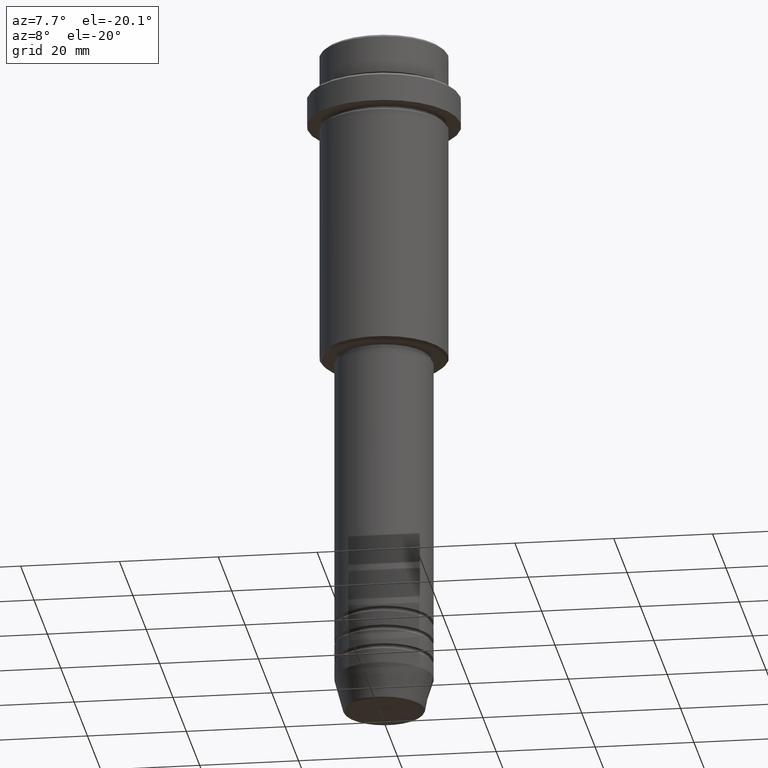
[diagram: clean part render]
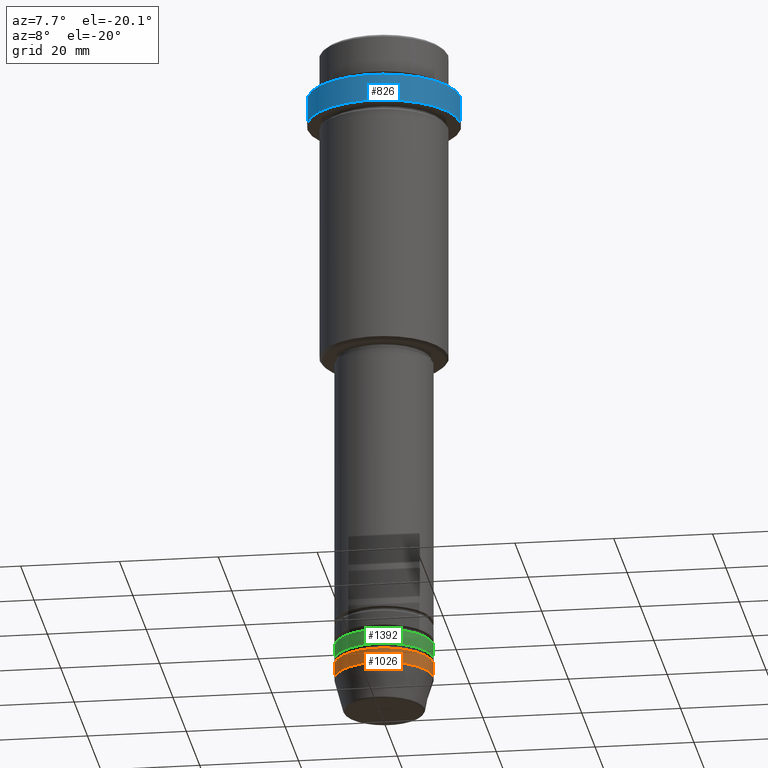
[diagram: same view with three faces highlighted in distinct colors, each labeled with its STEP entity id]
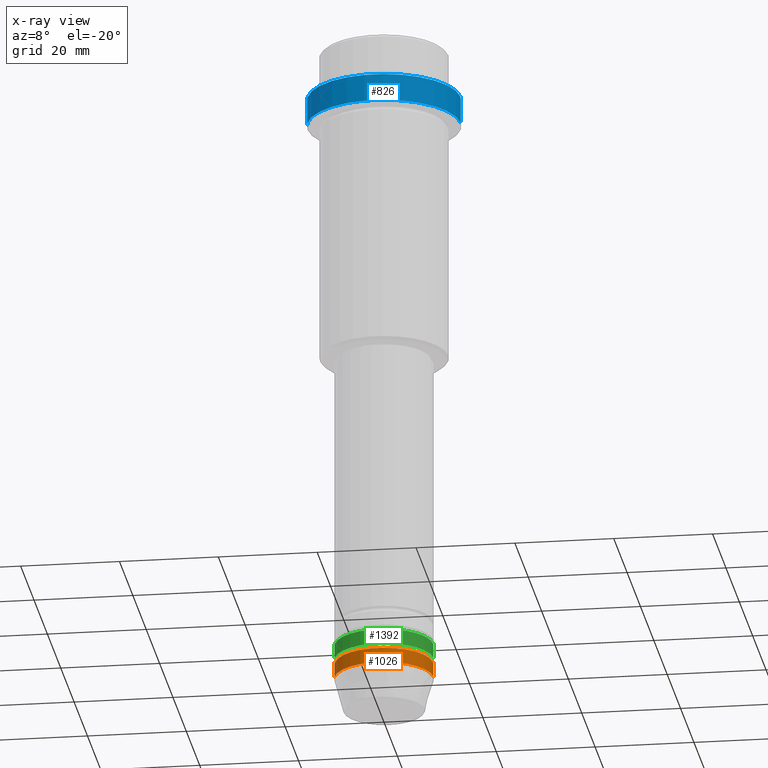
[diagram: x-ray of the same camera — body ghosted, the three highlighted faces saturated]
A machine part, auxiliary view with three faces highlighted in distinct colors.
The next image is the same camera in x-ray (body ghosted, the three faces saturated) — at least one of them is partly hidden behind the body in this view.
Their STEP definitions:

[orange] entity #1026 — the highlighted cylindrical surface (partial cylindrical patch) has radius 10 mm, axis along (-0, -0, 1).
#12 = VECTOR ( 'NONE', #1411, 1000.000000000000000 ) ;
#54 = FACE_OUTER_BOUND ( 'NONE', #298, .T. ) ;
#78 = ORIENTED_EDGE ( 'NONE', *, *, #1167, .F. ) ;
#97 = DIRECTION ( 'NONE',  ( 1.000000000000000000, 0.000000000000000000, 0.000000000000000000 ) ) ;
#104 = CARTESIAN_POINT ( 'NONE',  ( 0.000000000000000000, 0.000000000000000000, -130.0000000000000000 ) ) ;
#132 = DIRECTION ( 'NONE',  ( 1.000000000000000000, 0.000000000000000000, 0.000000000000000000 ) ) ;
#168 = CYLINDRICAL_SURFACE ( 'NONE', #1015, 10.00000000000000000 ) ;
#171 = VERTEX_POINT ( 'NONE', #762 ) ;
#293 = VECTOR ( 'NONE', #1073, 1000.000000000000000 ) ;
#298 = EDGE_LOOP ( 'NONE', ( #78, #1169, #1239, #772 ) ) ;
#324 = CARTESIAN_POINT ( 'NONE',  ( -10.00000000000000000, 1.224646799147353256E-15, 0.000000000000000000 ) ) ;
#349 = VERTEX_POINT ( 'NONE', #1068 ) ;
#427 = DIRECTION ( 'NONE',  ( -0.000000000000000000, -0.000000000000000000, 1.000000000000000000 ) ) ;
#532 = CIRCLE ( 'NONE', #1125, 10.00000000000000000 ) ;
#594 = DIRECTION ( 'NONE',  ( -0.000000000000000000, -0.000000000000000000, 1.000000000000000000 ) ) ;
#714 = EDGE_CURVE ( 'NONE', #349, #171, #532, .T. ) ;
#762 = CARTESIAN_POINT ( 'NONE',  ( 10.00000000000000000, 0.000000000000000000, -130.0000000000000000 ) ) ;
#766 = CARTESIAN_POINT ( 'NONE',  ( 10.00000000000000000, 0.000000000000000000, 0.000000000000000000 ) ) ;
#772 = ORIENTED_EDGE ( 'NONE', *, *, #714, .F. ) ;
#827 = CARTESIAN_POINT ( 'NONE',  ( 0.000000000000000000, 0.000000000000000000, 0.000000000000000000 ) ) ;
#856 = CIRCLE ( 'NONE', #1127, 10.00000000000000000 ) ;
#895 = DIRECTION ( 'NONE',  ( -0.000000000000000000, -0.000000000000000000, 1.000000000000000000 ) ) ;
#923 = EDGE_CURVE ( 'NONE', #1325, #1107, #856, .T. ) ;
#960 = CARTESIAN_POINT ( 'NONE',  ( 10.00000000000000000, 0.000000000000000000, -133.0000000000000000 ) ) ;
#968 = LINE ( 'NONE', #324, #12 ) ;
#1015 = AXIS2_PLACEMENT_3D ( 'NONE', #827, #594, #1264 ) ;
#1026 = ADVANCED_FACE ( 'NONE', ( #54 ), #168, .T. ) ;
#1067 = LINE ( 'NONE', #766, #293 ) ;
#1068 = CARTESIAN_POINT ( 'NONE',  ( -10.00000000000000000, 1.224646799147353256E-15, -130.0000000000000000 ) ) ;
#1073 = DIRECTION ( 'NONE',  ( -0.000000000000000000, -0.000000000000000000, 1.000000000000000000 ) ) ;
#1095 = EDGE_CURVE ( 'NONE', #1107, #171, #1067, .T. ) ;
#1107 = VERTEX_POINT ( 'NONE', #960 ) ;
#1125 = AXIS2_PLACEMENT_3D ( 'NONE', #104, #427, #97 ) ;
#1127 = AXIS2_PLACEMENT_3D ( 'NONE', #1345, #895, #132 ) ;
#1167 = EDGE_CURVE ( 'NONE', #1325, #349, #968, .T. ) ;
#1169 = ORIENTED_EDGE ( 'NONE', *, *, #923, .T. ) ;
#1239 = ORIENTED_EDGE ( 'NONE', *, *, #1095, .T. ) ;
#1264 = DIRECTION ( 'NONE',  ( 1.000000000000000000, 0.000000000000000000, 0.000000000000000000 ) ) ;
#1325 = VERTEX_POINT ( 'NONE', #1335 ) ;
#1335 = CARTESIAN_POINT ( 'NONE',  ( -10.00000000000000000, 1.224646799147353256E-15, -133.0000000000000000 ) ) ;
#1345 = CARTESIAN_POINT ( 'NONE',  ( 0.000000000000000000, 0.000000000000000000, -133.0000000000000000 ) ) ;
#1411 = DIRECTION ( 'NONE',  ( -0.000000000000000000, -0.000000000000000000, 1.000000000000000000 ) ) ;

[blue] entity #826 — the highlighted cylindrical surface (partial cylindrical patch) has radius 15.5 mm, axis along (-0, -0, 1).
#17 = CARTESIAN_POINT ( 'NONE',  ( 15.50000000000000000, 0.000000000000000000, -9.499999999999984013 ) ) ;
#113 = EDGE_CURVE ( 'NONE', #1119, #1287, #907, .T. ) ;
#177 = EDGE_CURVE ( 'NONE', #563, #935, #980, .T. ) ;
#197 = DIRECTION ( 'NONE',  ( 1.000000000000000000, 0.000000000000000000, 0.000000000000000000 ) ) ;
#220 = DIRECTION ( 'NONE',  ( -0.000000000000000000, -0.000000000000000000, 1.000000000000000000 ) ) ;
#291 = AXIS2_PLACEMENT_3D ( 'NONE', #802, #1209, #917 ) ;
#292 = EDGE_CURVE ( 'NONE', #1287, #935, #508, .T. ) ;
#345 = FACE_OUTER_BOUND ( 'NONE', #1225, .T. ) ;
#348 = EDGE_CURVE ( 'NONE', #563, #1119, #1382, .T. ) ;
#462 = AXIS2_PLACEMENT_3D ( 'NONE', #961, #1184, #197 ) ;
#504 = CARTESIAN_POINT ( 'NONE',  ( -15.50000000000000000, 1.898202538678397557E-15, -9.499999999999984013 ) ) ;
#508 = CIRCLE ( 'NONE', #1297, 15.50000000000000000 ) ;
#519 = CARTESIAN_POINT ( 'NONE',  ( 15.50000000000000000, 0.000000000000000000, -15.00000000000000000 ) ) ;
#525 = VECTOR ( 'NONE', #220, 1000.000000000000000 ) ;
#563 = VERTEX_POINT ( 'NONE', #618 ) ;
#618 = CARTESIAN_POINT ( 'NONE',  ( -15.50000000000000000, 1.898202538678397557E-15, -15.00000000000000000 ) ) ;
#690 = CYLINDRICAL_SURFACE ( 'NONE', #291, 15.50000000000000000 ) ;
#700 = DIRECTION ( 'NONE',  ( 1.000000000000000000, 0.000000000000000000, 0.000000000000000000 ) ) ;
#770 = ORIENTED_EDGE ( 'NONE', *, *, #292, .T. ) ;
#783 = VECTOR ( 'NONE', #1348, 1000.000000000000000 ) ;
#802 = CARTESIAN_POINT ( 'NONE',  ( 0.000000000000000000, 0.000000000000000000, 0.000000000000000000 ) ) ;
#826 = ADVANCED_FACE ( 'NONE', ( #345 ), #690, .T. ) ;
#898 = CARTESIAN_POINT ( 'NONE',  ( 15.50000000000000000, 0.000000000000000000, 0.000000000000000000 ) ) ;
#907 = LINE ( 'NONE', #898, #783 ) ;
#917 = DIRECTION ( 'NONE',  ( 1.000000000000000000, 0.000000000000000000, 0.000000000000000000 ) ) ;
#935 = VERTEX_POINT ( 'NONE', #504 ) ;
#961 = CARTESIAN_POINT ( 'NONE',  ( 0.000000000000000000, 0.000000000000000000, -15.00000000000000000 ) ) ;
#980 = LINE ( 'NONE', #1191, #525 ) ;
#993 = ORIENTED_EDGE ( 'NONE', *, *, #177, .F. ) ;
#1048 = ORIENTED_EDGE ( 'NONE', *, *, #113, .T. ) ;
#1119 = VERTEX_POINT ( 'NONE', #519 ) ;
#1184 = DIRECTION ( 'NONE',  ( -0.000000000000000000, -0.000000000000000000, 1.000000000000000000 ) ) ;
#1191 = CARTESIAN_POINT ( 'NONE',  ( -15.50000000000000000, 1.898202538678397557E-15, 0.000000000000000000 ) ) ;
#1209 = DIRECTION ( 'NONE',  ( -0.000000000000000000, -0.000000000000000000, 1.000000000000000000 ) ) ;
#1225 = EDGE_LOOP ( 'NONE', ( #993, #1417, #1048, #770 ) ) ;
#1230 = CARTESIAN_POINT ( 'NONE',  ( 0.000000000000000000, 0.000000000000000000, -9.499999999999984013 ) ) ;
#1238 = DIRECTION ( 'NONE',  ( 0.000000000000000000, 0.000000000000000000, -1.000000000000000000 ) ) ;
#1287 = VERTEX_POINT ( 'NONE', #17 ) ;
#1297 = AXIS2_PLACEMENT_3D ( 'NONE', #1230, #1238, #700 ) ;
#1348 = DIRECTION ( 'NONE',  ( -0.000000000000000000, -0.000000000000000000, 1.000000000000000000 ) ) ;
#1382 = CIRCLE ( 'NONE', #462, 15.50000000000000000 ) ;
#1417 = ORIENTED_EDGE ( 'NONE', *, *, #348, .T. ) ;

[green] entity #1392 — the highlighted cylindrical surface (partial cylindrical patch) has radius 10 mm, axis along (-0, -0, 1).
#51 = CARTESIAN_POINT ( 'NONE',  ( 0.000000000000000000, 0.000000000000000000, -125.9999999999998863 ) ) ;
#53 = EDGE_CURVE ( 'NONE', #1035, #705, #56, .T. ) ;
#56 = CIRCLE ( 'NONE', #716, 10.00000000000000000 ) ;
#125 = ORIENTED_EDGE ( 'NONE', *, *, #1072, .F. ) ;
#281 = DIRECTION ( 'NONE',  ( 1.000000000000000000, 0.000000000000000000, 0.000000000000000000 ) ) ;
#287 = VERTEX_POINT ( 'NONE', #912 ) ;
#288 = CIRCLE ( 'NONE', #1403, 10.00000000000000000 ) ;
#328 = CARTESIAN_POINT ( 'NONE',  ( -10.00000000000000000, 1.224646799147353256E-15, 0.000000000000000000 ) ) ;
#378 = DIRECTION ( 'NONE',  ( -0.000000000000000000, -0.000000000000000000, 1.000000000000000000 ) ) ;
#383 = DIRECTION ( 'NONE',  ( -0.000000000000000000, -0.000000000000000000, 1.000000000000000000 ) ) ;
#436 = EDGE_CURVE ( 'NONE', #1269, #287, #288, .T. ) ;
#465 = AXIS2_PLACEMENT_3D ( 'NONE', #1374, #378, #1283 ) ;
#483 = FACE_OUTER_BOUND ( 'NONE', #1108, .T. ) ;
#484 = LINE ( 'NONE', #328, #768 ) ;
#499 = LINE ( 'NONE', #715, #1217 ) ;
#600 = CARTESIAN_POINT ( 'NONE',  ( -10.00000000000000000, 1.224646799147353256E-15, -125.9999999999998863 ) ) ;
#615 = ORIENTED_EDGE ( 'NONE', *, *, #436, .T. ) ;
#702 = DIRECTION ( 'NONE',  ( -0.000000000000000000, -0.000000000000000000, 1.000000000000000000 ) ) ;
#705 = VERTEX_POINT ( 'NONE', #1397 ) ;
#715 = CARTESIAN_POINT ( 'NONE',  ( 10.00000000000000000, 0.000000000000000000, 0.000000000000000000 ) ) ;
#716 = AXIS2_PLACEMENT_3D ( 'NONE', #51, #702, #281 ) ;
#768 = VECTOR ( 'NONE', #1178, 1000.000000000000000 ) ;
#794 = DIRECTION ( 'NONE',  ( 1.000000000000000000, 0.000000000000000000, 0.000000000000000000 ) ) ;
#893 = CARTESIAN_POINT ( 'NONE',  ( -10.00000000000000000, 1.224646799147353256E-15, -128.9999999999998863 ) ) ;
#912 = CARTESIAN_POINT ( 'NONE',  ( 10.00000000000000000, 0.000000000000000000, -128.9999999999998863 ) ) ;
#936 = CYLINDRICAL_SURFACE ( 'NONE', #465, 10.00000000000000000 ) ;
#937 = DIRECTION ( 'NONE',  ( -0.000000000000000000, -0.000000000000000000, 1.000000000000000000 ) ) ;
#1005 = EDGE_CURVE ( 'NONE', #287, #705, #499, .T. ) ;
#1035 = VERTEX_POINT ( 'NONE', #600 ) ;
#1072 = EDGE_CURVE ( 'NONE', #1269, #1035, #484, .T. ) ;
#1108 = EDGE_LOOP ( 'NONE', ( #125, #615, #1410, #1160 ) ) ;
#1160 = ORIENTED_EDGE ( 'NONE', *, *, #53, .F. ) ;
#1178 = DIRECTION ( 'NONE',  ( -0.000000000000000000, -0.000000000000000000, 1.000000000000000000 ) ) ;
#1217 = VECTOR ( 'NONE', #937, 1000.000000000000000 ) ;
#1269 = VERTEX_POINT ( 'NONE', #893 ) ;
#1283 = DIRECTION ( 'NONE',  ( 1.000000000000000000, 0.000000000000000000, 0.000000000000000000 ) ) ;
#1374 = CARTESIAN_POINT ( 'NONE',  ( 0.000000000000000000, 0.000000000000000000, 0.000000000000000000 ) ) ;
#1388 = CARTESIAN_POINT ( 'NONE',  ( 0.000000000000000000, 0.000000000000000000, -128.9999999999998863 ) ) ;
#1392 = ADVANCED_FACE ( 'NONE', ( #483 ), #936, .T. ) ;
#1397 = CARTESIAN_POINT ( 'NONE',  ( 10.00000000000000000, 0.000000000000000000, -125.9999999999998863 ) ) ;
#1403 = AXIS2_PLACEMENT_3D ( 'NONE', #1388, #383, #794 ) ;
#1410 = ORIENTED_EDGE ( 'NONE', *, *, #1005, .T. ) ;